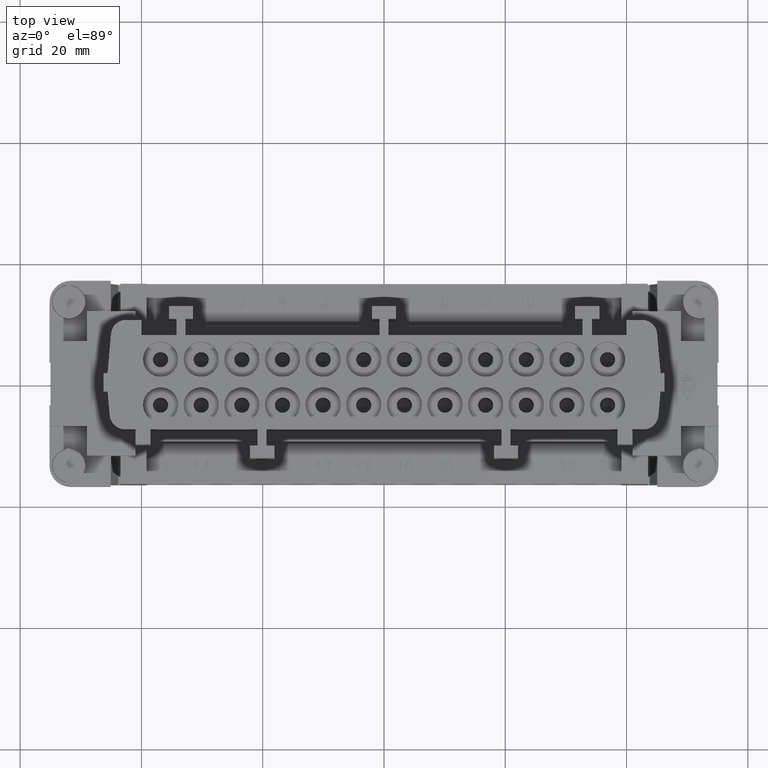
[diagram: clean part render]
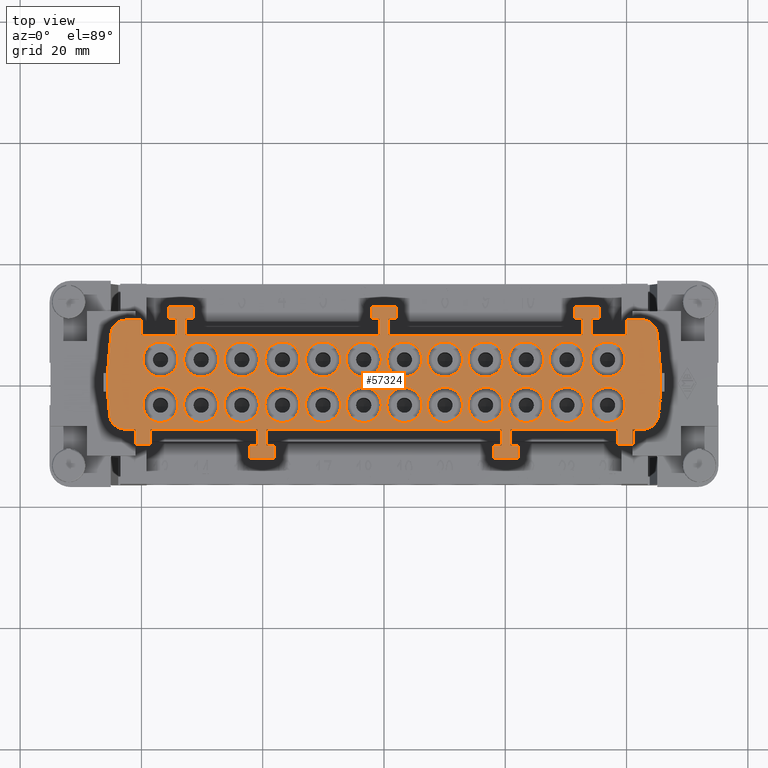
[diagram: same view with one face highlighted and labeled with its STEP entity id]
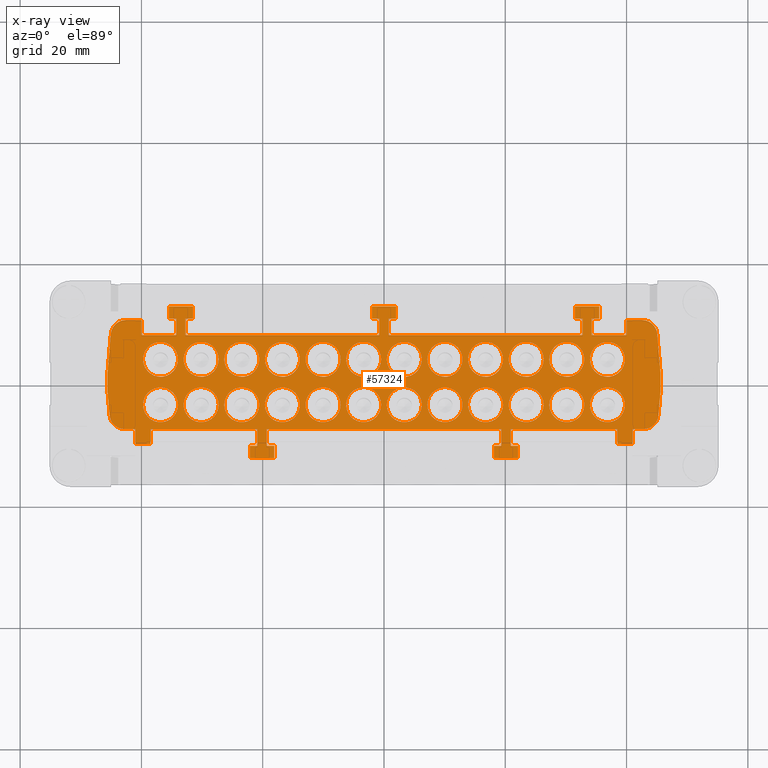
[diagram: x-ray of the same camera — body ghosted, the highlighted face saturated]
A machine part, top view. The second image highlights one B-rep face of the part: STEP entity #57324.
The next image is the same camera in x-ray: the body ghosted, the highlighted face saturated — about 0% of this face is hidden behind the body in this view.
In plain terms, the highlighted planar face has unit normal (0, 0, 1).
Its self-contained STEP definition (entity closure, byte-faithful):
#8753=CARTESIAN_POINT('',(-33.950000000000003,-3.750000000000000,35.0));
#8754=VERTEX_POINT('',#8753);
#8770=CARTESIAN_POINT('',(-39.750000000000000,-3.750000000000000,35.0));
#8771=VERTEX_POINT('',#8770);
#8778=CARTESIAN_POINT('',(-36.850000000000001,-3.750000000000000,35.0));
#8779=DIRECTION('',(0.0,0.0,-1.0));
#8780=DIRECTION('',(1.0,0.0,0.0));
#8781=AXIS2_PLACEMENT_3D('',#8778,#8779,#8780);
#8782=CIRCLE('',#8781,2.900000000000000);
#8783=EDGE_CURVE('',#8754,#8771,#8782,.T.);
#8929=CARTESIAN_POINT('',(-27.250000000000000,-3.750000000000004,35.0));
#8930=VERTEX_POINT('',#8929);
#8946=CARTESIAN_POINT('',(-33.050000000000004,-3.750000000000004,35.0));
#8947=VERTEX_POINT('',#8946);
#8954=CARTESIAN_POINT('',(-30.150000000000002,-3.750000000000004,35.0));
#8955=DIRECTION('',(0.0,0.0,-1.0));
#8956=DIRECTION('',(1.0,0.0,0.0));
#8957=AXIS2_PLACEMENT_3D('',#8954,#8955,#8956);
#8958=CIRCLE('',#8957,2.900000000000000);
#8959=EDGE_CURVE('',#8930,#8947,#8958,.T.);
#9105=CARTESIAN_POINT('',(-20.549999999999997,-3.750000000000008,35.0));
#9106=VERTEX_POINT('',#9105);
#9122=CARTESIAN_POINT('',(-26.349999999999994,-3.750000000000008,35.0));
#9123=VERTEX_POINT('',#9122);
#9130=CARTESIAN_POINT('',(-23.449999999999996,-3.750000000000008,35.0));
#9131=DIRECTION('',(0.0,0.0,-1.0));
#9132=DIRECTION('',(1.0,0.0,0.0));
#9133=AXIS2_PLACEMENT_3D('',#9130,#9131,#9132);
#9134=CIRCLE('',#9133,2.900000000000000);
#9135=EDGE_CURVE('',#9106,#9123,#9134,.T.);
#9281=CARTESIAN_POINT('',(-13.849999999999998,-3.750000000000013,35.0));
#9282=VERTEX_POINT('',#9281);
#9298=CARTESIAN_POINT('',(-19.649999999999999,-3.750000000000012,35.0));
#9299=VERTEX_POINT('',#9298);
#9306=CARTESIAN_POINT('',(-16.750000000000000,-3.750000000000013,35.0));
#9307=DIRECTION('',(0.0,0.0,-1.0));
#9308=DIRECTION('',(1.0,0.0,0.0));
#9309=AXIS2_PLACEMENT_3D('',#9306,#9307,#9308);
#9310=CIRCLE('',#9309,2.900000000000000);
#9311=EDGE_CURVE('',#9282,#9299,#9310,.T.);
#9457=CARTESIAN_POINT('',(-7.149999999999999,-3.750000000000017,35.0));
#9458=VERTEX_POINT('',#9457);
#9474=CARTESIAN_POINT('',(-12.949999999999999,-3.750000000000016,35.0));
#9475=VERTEX_POINT('',#9474);
#9482=CARTESIAN_POINT('',(-10.049999999999999,-3.750000000000017,35.0));
#9483=DIRECTION('',(0.0,0.0,-1.0));
#9484=DIRECTION('',(1.0,0.0,0.0));
#9485=AXIS2_PLACEMENT_3D('',#9482,#9483,#9484);
#9486=CIRCLE('',#9485,2.900000000000000);
#9487=EDGE_CURVE('',#9458,#9475,#9486,.T.);
#9633=CARTESIAN_POINT('',(-0.449999999999999,-3.750000000000021,35.0));
#9634=VERTEX_POINT('',#9633);
#9650=CARTESIAN_POINT('',(-6.250000000000000,-3.750000000000021,35.0));
#9651=VERTEX_POINT('',#9650);
#9658=CARTESIAN_POINT('',(-3.350000000000000,-3.750000000000021,35.0));
#9659=DIRECTION('',(0.0,0.0,-1.0));
#9660=DIRECTION('',(1.0,0.0,0.0));
#9661=AXIS2_PLACEMENT_3D('',#9658,#9659,#9660);
#9662=CIRCLE('',#9661,2.900000000000000);
#9663=EDGE_CURVE('',#9634,#9651,#9662,.T.);
#9809=CARTESIAN_POINT('',(6.250000000000004,-3.750000000000026,35.0));
#9810=VERTEX_POINT('',#9809);
#9826=CARTESIAN_POINT('',(0.450000000000004,-3.750000000000025,35.0));
#9827=VERTEX_POINT('',#9826);
#9834=CARTESIAN_POINT('',(3.350000000000004,-3.750000000000026,35.0));
#9835=DIRECTION('',(0.0,0.0,-1.0));
#9836=DIRECTION('',(1.0,0.0,0.0));
#9837=AXIS2_PLACEMENT_3D('',#9834,#9835,#9836);
#9838=CIRCLE('',#9837,2.900000000000000);
#9839=EDGE_CURVE('',#9810,#9827,#9838,.T.);
#9985=CARTESIAN_POINT('',(12.950000000000003,-3.750000000000029,35.0));
#9986=VERTEX_POINT('',#9985);
#10002=CARTESIAN_POINT('',(7.150000000000004,-3.750000000000029,35.0));
#10003=VERTEX_POINT('',#10002);
#10010=CARTESIAN_POINT('',(10.050000000000004,-3.750000000000029,35.0));
#10011=DIRECTION('',(0.0,0.0,-1.0));
#10012=DIRECTION('',(1.0,0.0,0.0));
#10013=AXIS2_PLACEMENT_3D('',#10010,#10011,#10012);
#10014=CIRCLE('',#10013,2.900000000000000);
#10015=EDGE_CURVE('',#9986,#10003,#10014,.T.);
#10161=CARTESIAN_POINT('',(19.650000000000002,-3.750000000000034,35.0));
#10162=VERTEX_POINT('',#10161);
#10178=CARTESIAN_POINT('',(13.850000000000003,-3.750000000000033,35.0));
#10179=VERTEX_POINT('',#10178);
#10186=CARTESIAN_POINT('',(16.750000000000004,-3.750000000000034,35.0));
#10187=DIRECTION('',(0.0,0.0,-1.0));
#10188=DIRECTION('',(1.0,0.0,0.0));
#10189=AXIS2_PLACEMENT_3D('',#10186,#10187,#10188);
#10190=CIRCLE('',#10189,2.900000000000000);
#10191=EDGE_CURVE('',#10162,#10179,#10190,.T.);
#10337=CARTESIAN_POINT('',(26.350000000000001,-3.750000000000038,35.0));
#10338=VERTEX_POINT('',#10337);
#10354=CARTESIAN_POINT('',(20.550000000000004,-3.750000000000037,35.0));
#10355=VERTEX_POINT('',#10354);
#10362=CARTESIAN_POINT('',(23.450000000000003,-3.750000000000038,35.0));
#10363=DIRECTION('',(0.0,0.0,-1.0));
#10364=DIRECTION('',(1.0,0.0,0.0));
#10365=AXIS2_PLACEMENT_3D('',#10362,#10363,#10364);
#10366=CIRCLE('',#10365,2.900000000000000);
#10367=EDGE_CURVE('',#10338,#10355,#10366,.T.);
#10513=CARTESIAN_POINT('',(33.050000000000004,-3.750000000000042,35.0));
#10514=VERTEX_POINT('',#10513);
#10530=CARTESIAN_POINT('',(27.250000000000004,-3.750000000000042,35.0));
#10531=VERTEX_POINT('',#10530);
#10538=CARTESIAN_POINT('',(30.150000000000002,-3.750000000000042,35.0));
#10539=DIRECTION('',(0.0,0.0,-1.0));
#10540=DIRECTION('',(1.0,0.0,0.0));
#10541=AXIS2_PLACEMENT_3D('',#10538,#10539,#10540);
#10542=CIRCLE('',#10541,2.900000000000000);
#10543=EDGE_CURVE('',#10514,#10531,#10542,.T.);
#10689=CARTESIAN_POINT('',(39.750000000000000,-3.750000000000047,35.0));
#10690=VERTEX_POINT('',#10689);
#10706=CARTESIAN_POINT('',(33.950000000000003,-3.750000000000046,35.0));
#10707=VERTEX_POINT('',#10706);
#10714=CARTESIAN_POINT('',(36.850000000000001,-3.750000000000047,35.0));
#10715=DIRECTION('',(0.0,0.0,-1.0));
#10716=DIRECTION('',(1.0,0.0,0.0));
#10717=AXIS2_PLACEMENT_3D('',#10714,#10715,#10716);
#10718=CIRCLE('',#10717,2.900000000000000);
#10719=EDGE_CURVE('',#10690,#10707,#10718,.T.);
#10865=CARTESIAN_POINT('',(-33.950000000000003,3.750000000000000,35.0));
#10866=VERTEX_POINT('',#10865);
#10882=CARTESIAN_POINT('',(-39.750000000000000,3.750000000000000,35.0));
#10883=VERTEX_POINT('',#10882);
#10890=CARTESIAN_POINT('',(-36.850000000000001,3.750000000000000,35.0));
#10891=DIRECTION('',(0.0,0.0,-1.0));
#10892=DIRECTION('',(1.0,0.0,0.0));
#10893=AXIS2_PLACEMENT_3D('',#10890,#10891,#10892);
#10894=CIRCLE('',#10893,2.900000000000000);
#10895=EDGE_CURVE('',#10866,#10883,#10894,.T.);
#11041=CARTESIAN_POINT('',(-27.250000000000000,3.749999999999996,35.0));
#11042=VERTEX_POINT('',#11041);
#11058=CARTESIAN_POINT('',(-33.050000000000004,3.749999999999996,35.0));
#11059=VERTEX_POINT('',#11058);
#11066=CARTESIAN_POINT('',(-30.150000000000002,3.749999999999996,35.0));
#11067=DIRECTION('',(0.0,0.0,-1.0));
#11068=DIRECTION('',(1.0,0.0,0.0));
#11069=AXIS2_PLACEMENT_3D('',#11066,#11067,#11068);
#11070=CIRCLE('',#11069,2.900000000000000);
#11071=EDGE_CURVE('',#11042,#11059,#11070,.T.);
#11217=CARTESIAN_POINT('',(-20.549999999999997,3.749999999999991,35.0));
#11218=VERTEX_POINT('',#11217);
#11234=CARTESIAN_POINT('',(-26.349999999999994,3.749999999999992,35.0));
#11235=VERTEX_POINT('',#11234);
#11242=CARTESIAN_POINT('',(-23.449999999999996,3.749999999999991,35.0));
#11243=DIRECTION('',(0.0,0.0,-1.0));
#11244=DIRECTION('',(1.0,0.0,0.0));
#11245=AXIS2_PLACEMENT_3D('',#11242,#11243,#11244);
#11246=CIRCLE('',#11245,2.900000000000000);
#11247=EDGE_CURVE('',#11218,#11235,#11246,.T.);
#11393=CARTESIAN_POINT('',(-13.849999999999998,3.749999999999988,35.0));
#11394=VERTEX_POINT('',#11393);
#11410=CARTESIAN_POINT('',(-19.649999999999999,3.749999999999988,35.0));
#11411=VERTEX_POINT('',#11410);
#11418=CARTESIAN_POINT('',(-16.750000000000000,3.749999999999988,35.0));
#11419=DIRECTION('',(0.0,0.0,-1.0));
#11420=DIRECTION('',(1.0,0.0,0.0));
#11421=AXIS2_PLACEMENT_3D('',#11418,#11419,#11420);
#11422=CIRCLE('',#11421,2.900000000000000);
#11423=EDGE_CURVE('',#11394,#11411,#11422,.T.);
#11569=CARTESIAN_POINT('',(-7.149999999999999,3.749999999999983,35.0));
#11570=VERTEX_POINT('',#11569);
#11586=CARTESIAN_POINT('',(-12.949999999999999,3.749999999999984,35.0));
#11587=VERTEX_POINT('',#11586);
#11594=CARTESIAN_POINT('',(-10.049999999999999,3.749999999999983,35.0));
#11595=DIRECTION('',(0.0,0.0,-1.0));
#11596=DIRECTION('',(1.0,0.0,0.0));
#11597=AXIS2_PLACEMENT_3D('',#11594,#11595,#11596);
#11598=CIRCLE('',#11597,2.900000000000000);
#11599=EDGE_CURVE('',#11570,#11587,#11598,.T.);
#11745=CARTESIAN_POINT('',(-0.449999999999999,3.749999999999979,35.0));
#11746=VERTEX_POINT('',#11745);
#11762=CARTESIAN_POINT('',(-6.250000000000000,3.749999999999979,35.0));
#11763=VERTEX_POINT('',#11762);
#11770=CARTESIAN_POINT('',(-3.350000000000000,3.749999999999979,35.0));
#11771=DIRECTION('',(0.0,0.0,-1.0));
#11772=DIRECTION('',(1.0,0.0,0.0));
#11773=AXIS2_PLACEMENT_3D('',#11770,#11771,#11772);
#11774=CIRCLE('',#11773,2.900000000000000);
#11775=EDGE_CURVE('',#11746,#11763,#11774,.T.);
#11921=CARTESIAN_POINT('',(6.250000000000004,3.749999999999974,35.0));
#11922=VERTEX_POINT('',#11921);
#11938=CARTESIAN_POINT('',(0.450000000000004,3.749999999999975,35.0));
#11939=VERTEX_POINT('',#11938);
#11946=CARTESIAN_POINT('',(3.350000000000004,3.749999999999974,35.0));
#11947=DIRECTION('',(0.0,0.0,-1.0));
#11948=DIRECTION('',(1.0,0.0,0.0));
#11949=AXIS2_PLACEMENT_3D('',#11946,#11947,#11948);
#11950=CIRCLE('',#11949,2.900000000000000);
#11951=EDGE_CURVE('',#11922,#11939,#11950,.T.);
#12097=CARTESIAN_POINT('',(12.950000000000003,3.749999999999970,35.0));
#12098=VERTEX_POINT('',#12097);
#12114=CARTESIAN_POINT('',(7.150000000000004,3.749999999999970,35.0));
#12115=VERTEX_POINT('',#12114);
#12122=CARTESIAN_POINT('',(10.050000000000004,3.749999999999970,35.0));
#12123=DIRECTION('',(0.0,0.0,-1.0));
#12124=DIRECTION('',(1.0,0.0,0.0));
#12125=AXIS2_PLACEMENT_3D('',#12122,#12123,#12124);
#12126=CIRCLE('',#12125,2.900000000000000);
#12127=EDGE_CURVE('',#12098,#12115,#12126,.T.);
#12273=CARTESIAN_POINT('',(19.650000000000002,3.749999999999967,35.0));
#12274=VERTEX_POINT('',#12273);
#12290=CARTESIAN_POINT('',(13.850000000000003,3.749999999999967,35.0));
#12291=VERTEX_POINT('',#12290);
#12298=CARTESIAN_POINT('',(16.750000000000004,3.749999999999967,35.0));
#12299=DIRECTION('',(0.0,0.0,-1.0));
#12300=DIRECTION('',(1.0,0.0,0.0));
#12301=AXIS2_PLACEMENT_3D('',#12298,#12299,#12300);
#12302=CIRCLE('',#12301,2.900000000000000);
#12303=EDGE_CURVE('',#12274,#12291,#12302,.T.);
#12449=CARTESIAN_POINT('',(26.350000000000001,3.749999999999962,35.0));
#12450=VERTEX_POINT('',#12449);
#12466=CARTESIAN_POINT('',(20.550000000000004,3.749999999999963,35.0));
#12467=VERTEX_POINT('',#12466);
#12474=CARTESIAN_POINT('',(23.450000000000003,3.749999999999962,35.0));
#12475=DIRECTION('',(0.0,0.0,-1.0));
#12476=DIRECTION('',(1.0,0.0,0.0));
#12477=AXIS2_PLACEMENT_3D('',#12474,#12475,#12476);
#12478=CIRCLE('',#12477,2.900000000000000);
#12479=EDGE_CURVE('',#12450,#12467,#12478,.T.);
#12625=CARTESIAN_POINT('',(33.050000000000004,3.749999999999958,35.0));
#12626=VERTEX_POINT('',#12625);
#12642=CARTESIAN_POINT('',(27.250000000000004,3.749999999999958,35.0));
#12643=VERTEX_POINT('',#12642);
#12650=CARTESIAN_POINT('',(30.150000000000002,3.749999999999958,35.0));
#12651=DIRECTION('',(0.0,0.0,-1.0));
#12652=DIRECTION('',(1.0,0.0,0.0));
#12653=AXIS2_PLACEMENT_3D('',#12650,#12651,#12652);
#12654=CIRCLE('',#12653,2.900000000000000);
#12655=EDGE_CURVE('',#12626,#12643,#12654,.T.);
#12801=CARTESIAN_POINT('',(39.750000000000000,3.749999999999953,35.0));
#12802=VERTEX_POINT('',#12801);
#12818=CARTESIAN_POINT('',(33.950000000000003,3.749999999999954,35.0));
#12819=VERTEX_POINT('',#12818);
#12826=CARTESIAN_POINT('',(36.850000000000001,3.749999999999953,35.0));
#12827=DIRECTION('',(0.0,0.0,-1.0));
#12828=DIRECTION('',(1.0,0.0,0.0));
#12829=AXIS2_PLACEMENT_3D('',#12826,#12827,#12828);
#12830=CIRCLE('',#12829,2.900000000000000);
#12831=EDGE_CURVE('',#12802,#12819,#12830,.T.);
#49723=CARTESIAN_POINT('',(-42.543646259104605,10.250000000000002,35.0));
#49724=VERTEX_POINT('',#49723);
#49731=CARTESIAN_POINT('',(-40.0,10.250000000000002,35.0));
#49732=VERTEX_POINT('',#49731);
#49733=CARTESIAN_POINT('',(-42.543646259104605,10.250000000000002,35.0));
#49734=DIRECTION('',(1.0,0.0,0.0));
#49735=VECTOR('',#49734,2.543646259104605);
#49736=LINE('',#49733,#49735);
#49737=EDGE_CURVE('',#49724,#49732,#49736,.T.);
#50215=CARTESIAN_POINT('',(41.0,-7.750000000000000,35.0));
#50216=VERTEX_POINT('',#50215);
#50223=CARTESIAN_POINT('',(41.0,-10.250000000000002,35.0));
#50224=VERTEX_POINT('',#50223);
#50225=CARTESIAN_POINT('',(41.0,-7.750000000000000,35.0));
#50226=DIRECTION('',(0.0,-1.0,0.0));
#50227=VECTOR('',#50226,2.500000000000002);
#50228=LINE('',#50225,#50227);
#50229=EDGE_CURVE('',#50216,#50224,#50228,.T.);
#50448=CARTESIAN_POINT('',(42.762367917919413,-7.749999999999999,35.0));
#50449=VERTEX_POINT('',#50448);
#50456=CARTESIAN_POINT('',(42.762367917919413,-7.749999999999999,35.0));
#50457=DIRECTION('',(-1.0,0.0,0.0));
#50458=VECTOR('',#50457,1.762367917919413);
#50459=LINE('',#50456,#50458);
#50460=EDGE_CURVE('',#50449,#50216,#50459,.T.);
#50527=CARTESIAN_POINT('',(45.252854663148781,-5.467889356869145,35.0));
#50528=VERTEX_POINT('',#50527);
#50535=CARTESIAN_POINT('',(42.762367917919413,-5.249999999999999,35.0));
#50536=DIRECTION('',(0.0,0.0,-1.0));
#50537=DIRECTION('',(0.0,1.0,0.0));
#50538=AXIS2_PLACEMENT_3D('',#50535,#50536,#50537);
#50539=CIRCLE('',#50538,2.500000000000009);
#50540=EDGE_CURVE('',#50528,#50449,#50539,.T.);
#50631=CARTESIAN_POINT('',(36.850000000000001,3.749999999999953,35.0));
#50632=DIRECTION('',(0.0,0.0,-1.0));
#50633=DIRECTION('',(1.0,0.0,0.0));
#50634=AXIS2_PLACEMENT_3D('',#50631,#50632,#50633);
#50635=CIRCLE('',#50634,2.900000000000000);
#50636=EDGE_CURVE('',#12819,#12802,#50635,.T.);
#50761=CARTESIAN_POINT('',(30.150000000000002,3.749999999999958,35.0));
#50762=DIRECTION('',(0.0,0.0,-1.0));
#50763=DIRECTION('',(1.0,0.0,0.0));
#50764=AXIS2_PLACEMENT_3D('',#50761,#50762,#50763);
#50765=CIRCLE('',#50764,2.900000000000000);
#50766=EDGE_CURVE('',#12643,#12626,#50765,.T.);
#50891=CARTESIAN_POINT('',(23.450000000000003,3.749999999999962,35.0));
#50892=DIRECTION('',(0.0,0.0,-1.0));
#50893=DIRECTION('',(1.0,0.0,0.0));
#50894=AXIS2_PLACEMENT_3D('',#50891,#50892,#50893);
#50895=CIRCLE('',#50894,2.900000000000000);
#50896=EDGE_CURVE('',#12467,#12450,#50895,.T.);
#51021=CARTESIAN_POINT('',(16.750000000000004,3.749999999999967,35.0));
#51022=DIRECTION('',(0.0,0.0,-1.0));
#51023=DIRECTION('',(1.0,0.0,0.0));
#51024=AXIS2_PLACEMENT_3D('',#51021,#51022,#51023);
#51025=CIRCLE('',#51024,2.900000000000000);
#51026=EDGE_CURVE('',#12291,#12274,#51025,.T.);
#51151=CARTESIAN_POINT('',(10.050000000000004,3.749999999999970,35.0));
#51152=DIRECTION('',(0.0,0.0,-1.0));
#51153=DIRECTION('',(1.0,0.0,0.0));
#51154=AXIS2_PLACEMENT_3D('',#51151,#51152,#51153);
#51155=CIRCLE('',#51154,2.900000000000000);
#51156=EDGE_CURVE('',#12115,#12098,#51155,.T.);
#51281=CARTESIAN_POINT('',(3.350000000000004,3.749999999999974,35.0));
#51282=DIRECTION('',(0.0,0.0,-1.0));
#51283=DIRECTION('',(1.0,0.0,0.0));
#51284=AXIS2_PLACEMENT_3D('',#51281,#51282,#51283);
#51285=CIRCLE('',#51284,2.900000000000000);
#51286=EDGE_CURVE('',#11939,#11922,#51285,.T.);
#51411=CARTESIAN_POINT('',(-3.350000000000000,3.749999999999979,35.0));
#51412=DIRECTION('',(0.0,0.0,-1.0));
#51413=DIRECTION('',(1.0,0.0,0.0));
#51414=AXIS2_PLACEMENT_3D('',#51411,#51412,#51413);
#51415=CIRCLE('',#51414,2.900000000000000);
#51416=EDGE_CURVE('',#11763,#11746,#51415,.T.);
#51541=CARTESIAN_POINT('',(-10.049999999999999,3.749999999999983,35.0));
#51542=DIRECTION('',(0.0,0.0,-1.0));
#51543=DIRECTION('',(1.0,0.0,0.0));
#51544=AXIS2_PLACEMENT_3D('',#51541,#51542,#51543);
#51545=CIRCLE('',#51544,2.900000000000000);
#51546=EDGE_CURVE('',#11587,#11570,#51545,.T.);
#51671=CARTESIAN_POINT('',(-16.750000000000000,3.749999999999988,35.0));
#51672=DIRECTION('',(0.0,0.0,-1.0));
#51673=DIRECTION('',(1.0,0.0,0.0));
#51674=AXIS2_PLACEMENT_3D('',#51671,#51672,#51673);
#51675=CIRCLE('',#51674,2.900000000000000);
#51676=EDGE_CURVE('',#11411,#11394,#51675,.T.);
#51801=CARTESIAN_POINT('',(-23.449999999999996,3.749999999999991,35.0));
#51802=DIRECTION('',(0.0,0.0,-1.0));
#51803=DIRECTION('',(1.0,0.0,0.0));
#51804=AXIS2_PLACEMENT_3D('',#51801,#51802,#51803);
#51805=CIRCLE('',#51804,2.900000000000000);
#51806=EDGE_CURVE('',#11235,#11218,#51805,.T.);
#51931=CARTESIAN_POINT('',(-30.150000000000002,3.749999999999996,35.0));
#51932=DIRECTION('',(0.0,0.0,-1.0));
#51933=DIRECTION('',(1.0,0.0,0.0));
#51934=AXIS2_PLACEMENT_3D('',#51931,#51932,#51933);
#51935=CIRCLE('',#51934,2.900000000000000);
#51936=EDGE_CURVE('',#11059,#11042,#51935,.T.);
#52061=CARTESIAN_POINT('',(-36.850000000000001,3.750000000000000,35.0));
#52062=DIRECTION('',(0.0,0.0,-1.0));
#52063=DIRECTION('',(1.0,0.0,0.0));
#52064=AXIS2_PLACEMENT_3D('',#52061,#52062,#52063);
#52065=CIRCLE('',#52064,2.900000000000000);
#52066=EDGE_CURVE('',#10883,#10866,#52065,.T.);
#52191=CARTESIAN_POINT('',(36.850000000000001,-3.750000000000047,35.0));
#52192=DIRECTION('',(0.0,0.0,-1.0));
#52193=DIRECTION('',(1.0,0.0,0.0));
#52194=AXIS2_PLACEMENT_3D('',#52191,#52192,#52193);
#52195=CIRCLE('',#52194,2.900000000000000);
#52196=EDGE_CURVE('',#10707,#10690,#52195,.T.);
#52321=CARTESIAN_POINT('',(30.150000000000002,-3.750000000000042,35.0));
#52322=DIRECTION('',(0.0,0.0,-1.0));
#52323=DIRECTION('',(1.0,0.0,0.0));
#52324=AXIS2_PLACEMENT_3D('',#52321,#52322,#52323);
#52325=CIRCLE('',#52324,2.900000000000000);
#52326=EDGE_CURVE('',#10531,#10514,#52325,.T.);
#52451=CARTESIAN_POINT('',(23.450000000000003,-3.750000000000038,35.0));
#52452=DIRECTION('',(0.0,0.0,-1.0));
#52453=DIRECTION('',(1.0,0.0,0.0));
#52454=AXIS2_PLACEMENT_3D('',#52451,#52452,#52453);
#52455=CIRCLE('',#52454,2.900000000000000);
#52456=EDGE_CURVE('',#10355,#10338,#52455,.T.);
#52581=CARTESIAN_POINT('',(16.750000000000004,-3.750000000000034,35.0));
#52582=DIRECTION('',(0.0,0.0,-1.0));
#52583=DIRECTION('',(1.0,0.0,0.0));
#52584=AXIS2_PLACEMENT_3D('',#52581,#52582,#52583);
#52585=CIRCLE('',#52584,2.900000000000000);
#52586=EDGE_CURVE('',#10179,#10162,#52585,.T.);
#52711=CARTESIAN_POINT('',(10.050000000000004,-3.750000000000029,35.0));
#52712=DIRECTION('',(0.0,0.0,-1.0));
#52713=DIRECTION('',(1.0,0.0,0.0));
#52714=AXIS2_PLACEMENT_3D('',#52711,#52712,#52713);
#52715=CIRCLE('',#52714,2.900000000000000);
#52716=EDGE_CURVE('',#10003,#9986,#52715,.T.);
#52841=CARTESIAN_POINT('',(3.350000000000004,-3.750000000000026,35.0));
#52842=DIRECTION('',(0.0,0.0,-1.0));
#52843=DIRECTION('',(1.0,0.0,0.0));
#52844=AXIS2_PLACEMENT_3D('',#52841,#52842,#52843);
#52845=CIRCLE('',#52844,2.900000000000000);
#52846=EDGE_CURVE('',#9827,#9810,#52845,.T.);
#52971=CARTESIAN_POINT('',(-3.350000000000000,-3.750000000000021,35.0));
#52972=DIRECTION('',(0.0,0.0,-1.0));
#52973=DIRECTION('',(1.0,0.0,0.0));
#52974=AXIS2_PLACEMENT_3D('',#52971,#52972,#52973);
#52975=CIRCLE('',#52974,2.900000000000000);
#52976=EDGE_CURVE('',#9651,#9634,#52975,.T.);
#53101=CARTESIAN_POINT('',(-10.049999999999999,-3.750000000000017,35.0));
#53102=DIRECTION('',(0.0,0.0,-1.0));
#53103=DIRECTION('',(1.0,0.0,0.0));
#53104=AXIS2_PLACEMENT_3D('',#53101,#53102,#53103);
#53105=CIRCLE('',#53104,2.900000000000000);
#53106=EDGE_CURVE('',#9475,#9458,#53105,.T.);
#53231=CARTESIAN_POINT('',(-16.750000000000000,-3.750000000000013,35.0));
#53232=DIRECTION('',(0.0,0.0,-1.0));
#53233=DIRECTION('',(1.0,0.0,0.0));
#53234=AXIS2_PLACEMENT_3D('',#53231,#53232,#53233);
#53235=CIRCLE('',#53234,2.900000000000000);
#53236=EDGE_CURVE('',#9299,#9282,#53235,.T.);
#53361=CARTESIAN_POINT('',(-23.449999999999996,-3.750000000000008,35.0));
#53362=DIRECTION('',(0.0,0.0,-1.0));
#53363=DIRECTION('',(1.0,0.0,0.0));
#53364=AXIS2_PLACEMENT_3D('',#53361,#53362,#53363);
#53365=CIRCLE('',#53364,2.900000000000000);
#53366=EDGE_CURVE('',#9123,#9106,#53365,.T.);
#53491=CARTESIAN_POINT('',(-30.150000000000002,-3.750000000000004,35.0));
#53492=DIRECTION('',(0.0,0.0,-1.0));
#53493=DIRECTION('',(1.0,0.0,0.0));
#53494=AXIS2_PLACEMENT_3D('',#53491,#53492,#53493);
#53495=CIRCLE('',#53494,2.900000000000000);
#53496=EDGE_CURVE('',#8947,#8930,#53495,.T.);
#53621=CARTESIAN_POINT('',(-36.850000000000001,-3.750000000000000,35.0));
#53622=DIRECTION('',(0.0,0.0,-1.0));
#53623=DIRECTION('',(1.0,0.0,0.0));
#53624=AXIS2_PLACEMENT_3D('',#53621,#53622,#53623);
#53625=CIRCLE('',#53624,2.900000000000000);
#53626=EDGE_CURVE('',#8771,#8754,#53625,.T.);
#53687=CARTESIAN_POINT('',(32.750000000000000,7.750000000000000,35.0));
#53688=VERTEX_POINT('',#53687);
#53695=CARTESIAN_POINT('',(32.749999999999993,10.500000000000000,35.0));
#53696=VERTEX_POINT('',#53695);
#53697=CARTESIAN_POINT('',(32.750000000000000,7.750000000000000,35.0));
#53698=DIRECTION('',(0.0,1.0,0.0));
#53699=VECTOR('',#53698,2.750000000000000);
#53700=LINE('',#53697,#53699);
#53701=EDGE_CURVE('',#53688,#53696,#53700,.T.);
#53718=CARTESIAN_POINT('',(31.499999999999993,10.500000000000000,35.0));
#53719=VERTEX_POINT('',#53718);
#53720=CARTESIAN_POINT('',(32.749999999999993,10.500000000000000,35.0));
#53721=DIRECTION('',(-1.0,0.0,0.0));
#53722=VECTOR('',#53721,1.250000000000000);
#53723=LINE('',#53720,#53722);
#53724=EDGE_CURVE('',#53696,#53719,#53723,.T.);
#53742=CARTESIAN_POINT('',(31.499999999999993,12.500000000000000,35.0));
#53743=VERTEX_POINT('',#53742);
#53744=CARTESIAN_POINT('',(31.499999999999993,10.500000000000000,35.0));
#53745=DIRECTION('',(0.0,1.0,0.0));
#53746=VECTOR('',#53745,2.0);
#53747=LINE('',#53744,#53746);
#53748=EDGE_CURVE('',#53719,#53743,#53747,.T.);
#53766=CARTESIAN_POINT('',(35.500000000000000,12.500000000000000,35.0));
#53767=VERTEX_POINT('',#53766);
#53768=CARTESIAN_POINT('',(31.499999999999993,12.500000000000000,35.0));
#53769=DIRECTION('',(1.0,0.0,0.0));
#53770=VECTOR('',#53769,4.000000000000007);
#53771=LINE('',#53768,#53770);
#53772=EDGE_CURVE('',#53743,#53767,#53771,.T.);
#53790=CARTESIAN_POINT('',(35.500000000000000,10.500000000000000,35.0));
#53791=VERTEX_POINT('',#53790);
#53792=CARTESIAN_POINT('',(35.500000000000000,12.500000000000000,35.0));
#53793=DIRECTION('',(0.0,-1.0,0.0));
#53794=VECTOR('',#53793,2.0);
#53795=LINE('',#53792,#53794);
#53796=EDGE_CURVE('',#53767,#53791,#53795,.T.);
#53814=CARTESIAN_POINT('',(34.249999999999993,10.500000000000000,35.0));
#53815=VERTEX_POINT('',#53814);
#53816=CARTESIAN_POINT('',(35.500000000000000,10.500000000000000,35.0));
#53817=DIRECTION('',(-1.0,0.0,0.0));
#53818=VECTOR('',#53817,1.250000000000007);
#53819=LINE('',#53816,#53818);
#53820=EDGE_CURVE('',#53791,#53815,#53819,.T.);
#53848=CARTESIAN_POINT('',(34.249999999999993,7.750000000000000,35.0));
#53849=VERTEX_POINT('',#53848);
#53850=CARTESIAN_POINT('',(34.249999999999993,10.500000000000000,35.0));
#53851=DIRECTION('',(0.0,-1.0,0.0));
#53852=VECTOR('',#53851,2.750000000000000);
#53853=LINE('',#53850,#53852);
#53854=EDGE_CURVE('',#53815,#53849,#53853,.T.);
#53895=CARTESIAN_POINT('',(19.350000000000001,-10.500000000000000,34.999999999999993));
#53896=VERTEX_POINT('',#53895);
#53903=CARTESIAN_POINT('',(19.350000000000019,-7.750000000000000,34.999999999999993));
#53904=VERTEX_POINT('',#53903);
#53905=CARTESIAN_POINT('',(19.350000000000001,-10.500000000000000,34.999999999999993));
#53906=DIRECTION('',(0.0,1.0,0.0));
#53907=VECTOR('',#53906,2.750000000000000);
#53908=LINE('',#53905,#53907);
#53909=EDGE_CURVE('',#53896,#53904,#53908,.T.);
#53935=CARTESIAN_POINT('',(20.849999999999994,-7.750000000000000,34.999999999999993));
#53936=VERTEX_POINT('',#53935);
#53943=CARTESIAN_POINT('',(20.850000000000005,-10.500000000000000,34.999999999999993));
#53944=VERTEX_POINT('',#53943);
#53945=CARTESIAN_POINT('',(20.849999999999994,-7.750000000000000,34.999999999999993));
#53946=DIRECTION('',(0.0,-1.0,0.0));
#53947=VECTOR('',#53946,2.750000000000000);
#53948=LINE('',#53945,#53947);
#53949=EDGE_CURVE('',#53936,#53944,#53948,.T.);
#53972=CARTESIAN_POINT('',(22.100000000000005,-10.500000000000000,34.999999999999993));
#53973=VERTEX_POINT('',#53972);
#53974=CARTESIAN_POINT('',(20.850000000000005,-10.500000000000000,34.999999999999993));
#53975=DIRECTION('',(1.0,0.0,0.0));
#53976=VECTOR('',#53975,1.250000000000000);
#53977=LINE('',#53974,#53976);
#53978=EDGE_CURVE('',#53944,#53973,#53977,.T.);
#53996=CARTESIAN_POINT('',(22.100000000000001,-12.500000000000000,34.999999999999993));
#53997=VERTEX_POINT('',#53996);
#53998=CARTESIAN_POINT('',(22.100000000000005,-10.500000000000000,34.999999999999993));
#53999=DIRECTION('',(0.0,-1.0,0.0));
#54000=VECTOR('',#53999,2.0);
#54001=LINE('',#53998,#54000);
#54002=EDGE_CURVE('',#53973,#53997,#54001,.T.);
#54020=CARTESIAN_POINT('',(18.100000000000001,-12.500000000000000,34.999999999999993));
#54021=VERTEX_POINT('',#54020);
#54022=CARTESIAN_POINT('',(22.100000000000001,-12.500000000000000,34.999999999999993));
#54023=DIRECTION('',(-1.0,0.0,0.0));
#54024=VECTOR('',#54023,4.0);
#54025=LINE('',#54022,#54024);
#54026=EDGE_CURVE('',#53997,#54021,#54025,.T.);
#54044=CARTESIAN_POINT('',(18.100000000000001,-10.500000000000000,34.999999999999993));
#54045=VERTEX_POINT('',#54044);
#54046=CARTESIAN_POINT('',(18.100000000000001,-12.500000000000000,34.999999999999993));
#54047=DIRECTION('',(0.0,1.0,0.0));
#54048=VECTOR('',#54047,2.0);
#54049=LINE('',#54046,#54048);
#54050=EDGE_CURVE('',#54021,#54045,#54049,.T.);
#54068=CARTESIAN_POINT('',(18.100000000000001,-10.500000000000000,34.999999999999993));
#54069=DIRECTION('',(1.0,0.0,0.0));
#54070=VECTOR('',#54069,1.250000000000000);
#54071=LINE('',#54068,#54070);
#54072=EDGE_CURVE('',#54045,#53896,#54071,.T.);
#54102=CARTESIAN_POINT('',(-20.850000000000005,-10.500000000000000,34.999999999999993));
#54103=VERTEX_POINT('',#54102);
#54110=CARTESIAN_POINT('',(-20.849999999999994,-7.750000000000000,34.999999999999993));
#54111=VERTEX_POINT('',#54110);
#54112=CARTESIAN_POINT('',(-20.850000000000005,-10.500000000000000,34.999999999999993));
#54113=DIRECTION('',(0.0,1.0,0.0));
#54114=VECTOR('',#54113,2.750000000000000);
#54115=LINE('',#54112,#54114);
#54116=EDGE_CURVE('',#54103,#54111,#54115,.T.);
#54142=CARTESIAN_POINT('',(-19.350000000000019,-7.750000000000000,34.999999999999993));
#54143=VERTEX_POINT('',#54142);
#54150=CARTESIAN_POINT('',(-19.350000000000001,-10.500000000000000,34.999999999999993));
#54151=VERTEX_POINT('',#54150);
#54152=CARTESIAN_POINT('',(-19.350000000000019,-7.750000000000000,34.999999999999993));
#54153=DIRECTION('',(0.0,-1.0,0.0));
#54154=VECTOR('',#54153,2.750000000000000);
#54155=LINE('',#54152,#54154);
#54156=EDGE_CURVE('',#54143,#54151,#54155,.T.);
#54179=CARTESIAN_POINT('',(-18.100000000000001,-10.500000000000000,34.999999999999993));
#54180=VERTEX_POINT('',#54179);
#54181=CARTESIAN_POINT('',(-19.350000000000001,-10.500000000000000,34.999999999999993));
#54182=DIRECTION('',(1.0,0.0,0.0));
#54183=VECTOR('',#54182,1.250000000000000);
#54184=LINE('',#54181,#54183);
#54185=EDGE_CURVE('',#54151,#54180,#54184,.T.);
#54203=CARTESIAN_POINT('',(-18.100000000000001,-12.500000000000000,34.999999999999993));
#54204=VERTEX_POINT('',#54203);
#54205=CARTESIAN_POINT('',(-18.100000000000001,-10.500000000000000,34.999999999999993));
#54206=DIRECTION('',(0.0,-1.0,0.0));
#54207=VECTOR('',#54206,2.0);
#54208=LINE('',#54205,#54207);
#54209=EDGE_CURVE('',#54180,#54204,#54208,.T.);
#54227=CARTESIAN_POINT('',(-22.100000000000001,-12.500000000000000,34.999999999999993));
#54228=VERTEX_POINT('',#54227);
#54229=CARTESIAN_POINT('',(-18.100000000000001,-12.500000000000000,34.999999999999993));
#54230=DIRECTION('',(-1.0,0.0,0.0));
#54231=VECTOR('',#54230,4.0);
#54232=LINE('',#54229,#54231);
#54233=EDGE_CURVE('',#54204,#54228,#54232,.T.);
#54251=CARTESIAN_POINT('',(-22.100000000000005,-10.500000000000000,34.999999999999993));
#54252=VERTEX_POINT('',#54251);
#54253=CARTESIAN_POINT('',(-22.100000000000001,-12.500000000000000,34.999999999999993));
#54254=DIRECTION('',(0.0,1.0,0.0));
#54255=VECTOR('',#54254,2.0);
#54256=LINE('',#54253,#54255);
#54257=EDGE_CURVE('',#54228,#54252,#54256,.T.);
#54275=CARTESIAN_POINT('',(-22.100000000000005,-10.500000000000000,34.999999999999993));
#54276=DIRECTION('',(1.0,0.0,0.0));
#54277=VECTOR('',#54276,1.250000000000000);
#54278=LINE('',#54275,#54277);
#54279=EDGE_CURVE('',#54252,#54103,#54278,.T.);
#54308=CARTESIAN_POINT('',(-0.749999999999993,7.749999999999995,35.0));
#54309=VERTEX_POINT('',#54308);
#54316=CARTESIAN_POINT('',(-0.750000000000000,10.500000000000000,35.0));
#54317=VERTEX_POINT('',#54316);
#54318=CARTESIAN_POINT('',(-0.749999999999993,7.749999999999995,35.0));
#54319=DIRECTION('',(0.0,1.0,0.0));
#54320=VECTOR('',#54319,2.750000000000005);
#54321=LINE('',#54318,#54320);
#54322=EDGE_CURVE('',#54309,#54317,#54321,.T.);
#54339=CARTESIAN_POINT('',(-2.0,12.500000000000000,35.0));
#54340=VERTEX_POINT('',#54339);
#54341=CARTESIAN_POINT('',(2.0,12.500000000000000,35.0));
#54342=VERTEX_POINT('',#54341);
#54343=CARTESIAN_POINT('',(-2.0,12.500000000000000,35.0));
#54344=DIRECTION('',(1.0,0.0,0.0));
#54345=VECTOR('',#54344,4.0);
#54346=LINE('',#54343,#54345);
#54347=EDGE_CURVE('',#54340,#54342,#54346,.T.);
#54370=CARTESIAN_POINT('',(2.0,10.500000000000000,35.0));
#54371=VERTEX_POINT('',#54370);
#54372=CARTESIAN_POINT('',(2.0,12.500000000000000,35.0));
#54373=DIRECTION('',(0.0,-1.0,0.0));
#54374=VECTOR('',#54373,2.0);
#54375=LINE('',#54372,#54374);
#54376=EDGE_CURVE('',#54342,#54371,#54375,.T.);
#54394=CARTESIAN_POINT('',(0.750000000000000,10.500000000000000,35.0));
#54395=VERTEX_POINT('',#54394);
#54396=CARTESIAN_POINT('',(2.0,10.500000000000000,35.0));
#54397=DIRECTION('',(-1.0,0.0,0.0));
#54398=VECTOR('',#54397,1.250000000000000);
#54399=LINE('',#54396,#54398);
#54400=EDGE_CURVE('',#54371,#54395,#54399,.T.);
#54428=CARTESIAN_POINT('',(0.749999999999993,7.749999999999995,35.0));
#54429=VERTEX_POINT('',#54428);
#54430=CARTESIAN_POINT('',(0.750000000000000,10.500000000000000,35.0));
#54431=DIRECTION('',(0.0,-1.0,0.0));
#54432=VECTOR('',#54431,2.750000000000005);
#54433=LINE('',#54430,#54432);
#54434=EDGE_CURVE('',#54395,#54429,#54433,.T.);
#54458=CARTESIAN_POINT('',(-2.0,10.500000000000000,35.0));
#54459=VERTEX_POINT('',#54458);
#54460=CARTESIAN_POINT('',(-0.750000000000000,10.500000000000000,35.0));
#54461=DIRECTION('',(-1.0,0.0,0.0));
#54462=VECTOR('',#54461,1.250000000000000);
#54463=LINE('',#54460,#54462);
#54464=EDGE_CURVE('',#54317,#54459,#54463,.T.);
#54482=CARTESIAN_POINT('',(-2.0,10.500000000000000,35.0));
#54483=DIRECTION('',(0.0,1.0,0.0));
#54484=VECTOR('',#54483,2.0);
#54485=LINE('',#54482,#54484);
#54486=EDGE_CURVE('',#54459,#54340,#54485,.T.);
#54506=CARTESIAN_POINT('',(-34.250000000000000,7.750000000000002,34.999999999999993));
#54507=VERTEX_POINT('',#54506);
#54514=CARTESIAN_POINT('',(-34.250000000000000,10.500000000000000,34.999999999999993));
#54515=VERTEX_POINT('',#54514);
#54516=CARTESIAN_POINT('',(-34.250000000000000,7.750000000000002,34.999999999999993));
#54517=DIRECTION('',(0.0,1.0,0.0));
#54518=VECTOR('',#54517,2.749999999999998);
#54519=LINE('',#54516,#54518);
#54520=EDGE_CURVE('',#54507,#54515,#54519,.T.);
#54537=CARTESIAN_POINT('',(-35.500000000000000,10.500000000000000,34.999999999999993));
#54538=VERTEX_POINT('',#54537);
#54539=CARTESIAN_POINT('',(-34.250000000000000,10.500000000000000,34.999999999999993));
#54540=DIRECTION('',(-1.0,0.0,0.0));
#54541=VECTOR('',#54540,1.250000000000000);
#54542=LINE('',#54539,#54541);
#54543=EDGE_CURVE('',#54515,#54538,#54542,.T.);
#54561=CARTESIAN_POINT('',(-35.500000000000000,12.500000000000000,34.999999999999993));
#54562=VERTEX_POINT('',#54561);
#54563=CARTESIAN_POINT('',(-35.500000000000000,10.500000000000000,34.999999999999993));
#54564=DIRECTION('',(0.0,1.0,0.0));
#54565=VECTOR('',#54564,2.0);
#54566=LINE('',#54563,#54565);
#54567=EDGE_CURVE('',#54538,#54562,#54566,.T.);
#54585=CARTESIAN_POINT('',(-31.500000000000004,12.500000000000000,34.999999999999993));
#54586=VERTEX_POINT('',#54585);
#54587=CARTESIAN_POINT('',(-35.500000000000000,12.500000000000000,34.999999999999993));
#54588=DIRECTION('',(1.0,0.0,0.0));
#54589=VECTOR('',#54588,3.999999999999996);
#54590=LINE('',#54587,#54589);
#54591=EDGE_CURVE('',#54562,#54586,#54590,.T.);
#54609=CARTESIAN_POINT('',(-31.500000000000000,10.500000000000000,34.999999999999993));
#54610=VERTEX_POINT('',#54609);
#54611=CARTESIAN_POINT('',(-31.500000000000004,12.500000000000000,34.999999999999993));
#54612=DIRECTION('',(0.0,-1.0,0.0));
#54613=VECTOR('',#54612,2.0);
#54614=LINE('',#54611,#54613);
#54615=EDGE_CURVE('',#54586,#54610,#54614,.T.);
#54633=CARTESIAN_POINT('',(-32.750000000000000,10.500000000000000,34.999999999999993));
#54634=VERTEX_POINT('',#54633);
#54635=CARTESIAN_POINT('',(-31.500000000000000,10.500000000000000,34.999999999999993));
#54636=DIRECTION('',(-1.0,0.0,0.0));
#54637=VECTOR('',#54636,1.250000000000000);
#54638=LINE('',#54635,#54637);
#54639=EDGE_CURVE('',#54610,#54634,#54638,.T.);
#54667=CARTESIAN_POINT('',(-32.750000000000000,7.750000000000002,34.999999999999993));
#54668=VERTEX_POINT('',#54667);
#54669=CARTESIAN_POINT('',(-32.750000000000000,10.500000000000000,34.999999999999993));
#54670=DIRECTION('',(0.0,-1.0,0.0));
#54671=VECTOR('',#54670,2.749999999999998);
#54672=LINE('',#54669,#54671);
#54673=EDGE_CURVE('',#54634,#54668,#54672,.T.);
#54706=CARTESIAN_POINT('',(38.500000000000000,-7.750000000000000,35.0));
#54707=VERTEX_POINT('',#54706);
#54714=CARTESIAN_POINT('',(38.500000000000000,-7.750000000000000,35.0));
#54715=DIRECTION('',(-1.0,0.0,0.0));
#54716=VECTOR('',#54715,17.650000000000006);
#54717=LINE('',#54714,#54716);
#54718=EDGE_CURVE('',#54707,#53936,#54717,.T.);
#54729=CARTESIAN_POINT('',(-38.500000000000000,-7.750000000000000,35.0));
#54730=VERTEX_POINT('',#54729);
#54731=CARTESIAN_POINT('',(-20.849999999999994,-7.750000000000000,34.999999999999993));
#54732=DIRECTION('',(-1.0,0.0,0.0));
#54733=VECTOR('',#54732,17.650000000000006);
#54734=LINE('',#54731,#54733);
#54735=EDGE_CURVE('',#54111,#54730,#54734,.T.);
#55002=CARTESIAN_POINT('',(-40.0,7.750000000000000,35.0));
#55003=VERTEX_POINT('',#55002);
#55010=CARTESIAN_POINT('',(-40.0,7.750000000000000,35.0));
#55011=DIRECTION('',(1.0,0.0,0.0));
#55012=VECTOR('',#55011,5.750000000000000);
#55013=LINE('',#55010,#55012);
#55014=EDGE_CURVE('',#55003,#54507,#55013,.T.);
#55027=CARTESIAN_POINT('',(-32.750000000000000,7.750000000000002,34.999999999999993));
#55028=DIRECTION('',(1.0,0.0,0.0));
#55029=VECTOR('',#55028,32.000000000000007);
#55030=LINE('',#55027,#55029);
#55031=EDGE_CURVE('',#54668,#54309,#55030,.T.);
#55042=CARTESIAN_POINT('',(40.0,7.750000000000000,35.0));
#55043=VERTEX_POINT('',#55042);
#55044=CARTESIAN_POINT('',(34.249999999999993,7.750000000000000,35.0));
#55045=DIRECTION('',(1.0,0.0,0.0));
#55046=VECTOR('',#55045,5.750000000000007);
#55047=LINE('',#55044,#55046);
#55048=EDGE_CURVE('',#53849,#55043,#55047,.T.);
#56685=CARTESIAN_POINT('',(-45.034133004333974,7.967889356869147,35.0));
#56686=VERTEX_POINT('',#56685);
#56693=CARTESIAN_POINT('',(-42.543646259104605,7.750000000000002,35.0));
#56694=DIRECTION('',(0.0,0.0,-1.0));
#56695=DIRECTION('',(0.0,-1.0,0.0));
#56696=AXIS2_PLACEMENT_3D('',#56693,#56694,#56695);
#56697=CIRCLE('',#56696,2.499999999999999);
#56698=EDGE_CURVE('',#56686,#49724,#56697,.T.);
#56709=CARTESIAN_POINT('',(-40.0,10.250000000000002,35.0));
#56710=DIRECTION('',(0.0,-1.0,0.0));
#56711=VECTOR('',#56710,2.500000000000002);
#56712=LINE('',#56709,#56711);
#56713=EDGE_CURVE('',#49732,#55003,#56712,.T.);
#56734=CARTESIAN_POINT('',(0.749999999999993,7.749999999999995,35.0));
#56735=DIRECTION('',(1.0,0.0,0.0));
#56736=VECTOR('',#56735,32.000000000000007);
#56737=LINE('',#56734,#56736);
#56738=EDGE_CURVE('',#54429,#53688,#56737,.T.);
#56748=CARTESIAN_POINT('',(40.0,10.250000000000002,35.0));
#56749=VERTEX_POINT('',#56748);
#56750=CARTESIAN_POINT('',(40.0,7.750000000000000,35.0));
#56751=DIRECTION('',(0.0,1.0,0.0));
#56752=VECTOR('',#56751,2.500000000000002);
#56753=LINE('',#56750,#56752);
#56754=EDGE_CURVE('',#55043,#56749,#56753,.T.);
#56775=CARTESIAN_POINT('',(42.543646259104605,10.250000000000002,35.0));
#56776=VERTEX_POINT('',#56775);
#56777=CARTESIAN_POINT('',(40.0,10.250000000000002,35.0));
#56778=DIRECTION('',(1.0,0.0,0.0));
#56779=VECTOR('',#56778,2.543646259104605);
#56780=LINE('',#56777,#56779);
#56781=EDGE_CURVE('',#56749,#56776,#56780,.T.);
#56800=CARTESIAN_POINT('',(45.034133004333974,7.967889356869147,35.0));
#56801=VERTEX_POINT('',#56800);
#56802=CARTESIAN_POINT('',(42.543646259104605,7.750000000000002,35.0));
#56803=DIRECTION('',(0.0,0.0,-1.0));
#56804=DIRECTION('',(-0.996194698091746,-0.087155742747658,0.0));
#56805=AXIS2_PLACEMENT_3D('',#56802,#56803,#56804);
#56806=CIRCLE('',#56805,2.500000000000005);
#56807=EDGE_CURVE('',#56776,#56801,#56806,.T.);
#56825=CARTESIAN_POINT('',(45.599999999999994,1.500000000000000,35.0));
#56826=VERTEX_POINT('',#56825);
#56827=CARTESIAN_POINT('',(45.034133004333974,7.967889356869147,35.0));
#56828=DIRECTION('',(0.087155742747657,-0.996194698091746,0.0));
#56829=VECTOR('',#56828,6.492595643460732);
#56830=LINE('',#56827,#56829);
#56831=EDGE_CURVE('',#56801,#56826,#56830,.T.);
#56855=CARTESIAN_POINT('',(45.599999999999994,-1.500000000000000,35.0));
#56856=VERTEX_POINT('',#56855);
#56857=CARTESIAN_POINT('',(45.599999999999994,1.500000000000000,35.0));
#56858=DIRECTION('',(0.0,-1.0,0.0));
#56859=VECTOR('',#56858,3.000000000000000);
#56860=LINE('',#56857,#56859);
#56861=EDGE_CURVE('',#56826,#56856,#56860,.T.);
#56880=CARTESIAN_POINT('',(45.599999999999994,-1.500000000000000,35.0));
#56881=DIRECTION('',(-0.087155742747657,-0.996194698091746,0.0));
#56882=VECTOR('',#56881,3.983046049602361);
#56883=LINE('',#56880,#56882);
#56884=EDGE_CURVE('',#56856,#50528,#56883,.T.);
#56895=CARTESIAN_POINT('',(38.500000000000000,-10.250000000000002,35.0));
#56896=VERTEX_POINT('',#56895);
#56897=CARTESIAN_POINT('',(41.0,-10.250000000000002,35.0));
#56898=DIRECTION('',(-1.0,0.0,0.0));
#56899=VECTOR('',#56898,2.500000000000000);
#56900=LINE('',#56897,#56899);
#56901=EDGE_CURVE('',#50224,#56896,#56900,.T.);
#56921=CARTESIAN_POINT('',(38.500000000000000,-10.250000000000002,35.0));
#56922=DIRECTION('',(0.0,1.0,0.0));
#56923=VECTOR('',#56922,2.500000000000002);
#56924=LINE('',#56921,#56923);
#56925=EDGE_CURVE('',#56896,#54707,#56924,.T.);
#56940=CARTESIAN_POINT('',(19.350000000000019,-7.750000000000000,34.999999999999993));
#56941=DIRECTION('',(-1.0,0.0,0.0));
#56942=VECTOR('',#56941,38.700000000000038);
#56943=LINE('',#56940,#56942);
#56944=EDGE_CURVE('',#53904,#54143,#56943,.T.);
#56961=CARTESIAN_POINT('',(-38.500000000000000,-10.250000000000002,35.0));
#56962=VERTEX_POINT('',#56961);
#56963=CARTESIAN_POINT('',(-38.500000000000000,-7.750000000000000,35.0));
#56964=DIRECTION('',(0.0,-1.0,0.0));
#56965=VECTOR('',#56964,2.500000000000002);
#56966=LINE('',#56963,#56965);
#56967=EDGE_CURVE('',#54730,#56962,#56966,.T.);
#56986=CARTESIAN_POINT('',(-41.0,-10.250000000000002,35.0));
#56987=VERTEX_POINT('',#56986);
#56988=CARTESIAN_POINT('',(-38.500000000000000,-10.250000000000002,35.0));
#56989=DIRECTION('',(-1.0,0.0,0.0));
#56990=VECTOR('',#56989,2.500000000000000);
#56991=LINE('',#56988,#56990);
#56992=EDGE_CURVE('',#56962,#56987,#56991,.T.);
#57019=CARTESIAN_POINT('',(-41.0,-7.750000000000000,35.0));
#57020=VERTEX_POINT('',#57019);
#57021=CARTESIAN_POINT('',(-41.0,-10.250000000000002,35.0));
#57022=DIRECTION('',(0.0,1.0,0.0));
#57023=VECTOR('',#57022,2.500000000000002);
#57024=LINE('',#57021,#57023);
#57025=EDGE_CURVE('',#56987,#57020,#57024,.T.);
#57043=CARTESIAN_POINT('',(-42.762367917919413,-7.749999999999999,35.0));
#57044=VERTEX_POINT('',#57043);
#57045=CARTESIAN_POINT('',(-41.0,-7.750000000000000,35.0));
#57046=DIRECTION('',(-1.0,0.0,0.0));
#57047=VECTOR('',#57046,1.762367917919413);
#57048=LINE('',#57045,#57047);
#57049=EDGE_CURVE('',#57020,#57044,#57048,.T.);
#57067=CARTESIAN_POINT('',(-45.252854663148781,-5.467889356869145,35.0));
#57068=VERTEX_POINT('',#57067);
#57069=CARTESIAN_POINT('',(-42.762367917919413,-5.249999999999999,35.0));
#57070=DIRECTION('',(0.0,0.0,-1.0));
#57071=DIRECTION('',(0.996194698091746,0.087155742747658,0.0));
#57072=AXIS2_PLACEMENT_3D('',#57069,#57070,#57071);
#57073=CIRCLE('',#57072,2.500000000000000);
#57074=EDGE_CURVE('',#57044,#57068,#57073,.T.);
#57092=CARTESIAN_POINT('',(-45.599999999999994,-1.500000000000000,35.0));
#57093=VERTEX_POINT('',#57092);
#57094=CARTESIAN_POINT('',(-45.252854663148781,-5.467889356869145,35.0));
#57095=DIRECTION('',(-0.087155742747657,0.996194698091746,0.0));
#57096=VECTOR('',#57095,3.983046049602361);
#57097=LINE('',#57094,#57096);
#57098=EDGE_CURVE('',#57068,#57093,#57097,.T.);
#57122=CARTESIAN_POINT('',(-45.599999999999994,1.500000000000000,35.0));
#57123=VERTEX_POINT('',#57122);
#57124=CARTESIAN_POINT('',(-45.599999999999994,-1.500000000000000,35.0));
#57125=DIRECTION('',(0.0,1.0,0.0));
#57126=VECTOR('',#57125,3.000000000000000);
#57127=LINE('',#57124,#57126);
#57128=EDGE_CURVE('',#57093,#57123,#57127,.T.);
#57147=CARTESIAN_POINT('',(-45.599999999999994,1.500000000000000,35.0));
#57148=DIRECTION('',(0.087155742747657,0.996194698091746,0.0));
#57149=VECTOR('',#57148,6.492595643460732);
#57150=LINE('',#57147,#57149);
#57151=EDGE_CURVE('',#57123,#56686,#57150,.T.);
#57157=CARTESIAN_POINT('',(5.412337E-015,0.017985694343922,35.0));
#57158=DIRECTION('',(0.0,0.0,1.0));
#57159=DIRECTION('',(1.0,0.0,0.0));
#57160=AXIS2_PLACEMENT_3D('',#57157,#57158,#57159);
#57161=PLANE('',#57160);
#57162=ORIENTED_EDGE('',*,*,#56698,.F.);
#57163=ORIENTED_EDGE('',*,*,#57151,.F.);
#57164=ORIENTED_EDGE('',*,*,#57128,.F.);
#57165=ORIENTED_EDGE('',*,*,#57098,.F.);
#57166=ORIENTED_EDGE('',*,*,#57074,.F.);
#57167=ORIENTED_EDGE('',*,*,#57049,.F.);
#57168=ORIENTED_EDGE('',*,*,#57025,.F.);
#57169=ORIENTED_EDGE('',*,*,#56992,.F.);
#57170=ORIENTED_EDGE('',*,*,#56967,.F.);
#57171=ORIENTED_EDGE('',*,*,#54735,.F.);
#57172=ORIENTED_EDGE('',*,*,#54116,.F.);
#57173=ORIENTED_EDGE('',*,*,#54279,.F.);
#57174=ORIENTED_EDGE('',*,*,#54257,.F.);
#57175=ORIENTED_EDGE('',*,*,#54233,.F.);
#57176=ORIENTED_EDGE('',*,*,#54209,.F.);
#57177=ORIENTED_EDGE('',*,*,#54185,.F.);
#57178=ORIENTED_EDGE('',*,*,#54156,.F.);
#57179=ORIENTED_EDGE('',*,*,#56944,.F.);
#57180=ORIENTED_EDGE('',*,*,#53909,.F.);
#57181=ORIENTED_EDGE('',*,*,#54072,.F.);
#57182=ORIENTED_EDGE('',*,*,#54050,.F.);
#57183=ORIENTED_EDGE('',*,*,#54026,.F.);
#57184=ORIENTED_EDGE('',*,*,#54002,.F.);
#57185=ORIENTED_EDGE('',*,*,#53978,.F.);
#57186=ORIENTED_EDGE('',*,*,#53949,.F.);
#57187=ORIENTED_EDGE('',*,*,#54718,.F.);
#57188=ORIENTED_EDGE('',*,*,#56925,.F.);
#57189=ORIENTED_EDGE('',*,*,#56901,.F.);
#57190=ORIENTED_EDGE('',*,*,#50229,.F.);
#57191=ORIENTED_EDGE('',*,*,#50460,.F.);
#57192=ORIENTED_EDGE('',*,*,#50540,.F.);
#57193=ORIENTED_EDGE('',*,*,#56884,.F.);
#57194=ORIENTED_EDGE('',*,*,#56861,.F.);
#57195=ORIENTED_EDGE('',*,*,#56831,.F.);
#57196=ORIENTED_EDGE('',*,*,#56807,.F.);
#57197=ORIENTED_EDGE('',*,*,#56781,.F.);
#57198=ORIENTED_EDGE('',*,*,#56754,.F.);
#57199=ORIENTED_EDGE('',*,*,#55048,.F.);
#57200=ORIENTED_EDGE('',*,*,#53854,.F.);
#57201=ORIENTED_EDGE('',*,*,#53820,.F.);
#57202=ORIENTED_EDGE('',*,*,#53796,.F.);
#57203=ORIENTED_EDGE('',*,*,#53772,.F.);
#57204=ORIENTED_EDGE('',*,*,#53748,.F.);
#57205=ORIENTED_EDGE('',*,*,#53724,.F.);
#57206=ORIENTED_EDGE('',*,*,#53701,.F.);
#57207=ORIENTED_EDGE('',*,*,#56738,.F.);
#57208=ORIENTED_EDGE('',*,*,#54434,.F.);
#57209=ORIENTED_EDGE('',*,*,#54400,.F.);
#57210=ORIENTED_EDGE('',*,*,#54376,.F.);
#57211=ORIENTED_EDGE('',*,*,#54347,.F.);
#57212=ORIENTED_EDGE('',*,*,#54486,.F.);
#57213=ORIENTED_EDGE('',*,*,#54464,.F.);
#57214=ORIENTED_EDGE('',*,*,#54322,.F.);
#57215=ORIENTED_EDGE('',*,*,#55031,.F.);
#57216=ORIENTED_EDGE('',*,*,#54673,.F.);
#57217=ORIENTED_EDGE('',*,*,#54639,.F.);
#57218=ORIENTED_EDGE('',*,*,#54615,.F.);
#57219=ORIENTED_EDGE('',*,*,#54591,.F.);
#57220=ORIENTED_EDGE('',*,*,#54567,.F.);
#57221=ORIENTED_EDGE('',*,*,#54543,.F.);
#57222=ORIENTED_EDGE('',*,*,#54520,.F.);
#57223=ORIENTED_EDGE('',*,*,#55014,.F.);
#57224=ORIENTED_EDGE('',*,*,#56713,.F.);
#57225=ORIENTED_EDGE('',*,*,#49737,.F.);
#57226=EDGE_LOOP('',(#57162,#57163,#57164,#57165,#57166,#57167,#57168,#57169,#57170,#57171,#57172,#57173,#57174,#57175,#57176,#57177,#57178,#57179,#57180,#57181,#57182,#57183,#57184,#57185,#57186,#57187,#57188,#57189,#57190,#57191,#57192,#57193,#57194,#57195,#57196,#57197,#57198,#57199,#57200,#57201,#57202,#57203,#57204,#57205,#57206,#57207,#57208,#57209,#57210,#57211,#57212,#57213,#57214,#57215,#57216,#57217,#57218,#57219,#57220,#57221,#57222,#57223,#57224,#57225));
#57227=FACE_OUTER_BOUND('',#57226,.T.);
#57228=ORIENTED_EDGE('',*,*,#12831,.T.);
#57229=ORIENTED_EDGE('',*,*,#50636,.T.);
#57230=EDGE_LOOP('',(#57228,#57229));
#57231=FACE_BOUND('',#57230,.T.);
#57232=ORIENTED_EDGE('',*,*,#12655,.T.);
#57233=ORIENTED_EDGE('',*,*,#50766,.T.);
#57234=EDGE_LOOP('',(#57232,#57233));
#57235=FACE_BOUND('',#57234,.T.);
#57236=ORIENTED_EDGE('',*,*,#12479,.T.);
#57237=ORIENTED_EDGE('',*,*,#50896,.T.);
#57238=EDGE_LOOP('',(#57236,#57237));
#57239=FACE_BOUND('',#57238,.T.);
#57240=ORIENTED_EDGE('',*,*,#12303,.T.);
#57241=ORIENTED_EDGE('',*,*,#51026,.T.);
#57242=EDGE_LOOP('',(#57240,#57241));
#57243=FACE_BOUND('',#57242,.T.);
#57244=ORIENTED_EDGE('',*,*,#12127,.T.);
#57245=ORIENTED_EDGE('',*,*,#51156,.T.);
#57246=EDGE_LOOP('',(#57244,#57245));
#57247=FACE_BOUND('',#57246,.T.);
#57248=ORIENTED_EDGE('',*,*,#11951,.T.);
#57249=ORIENTED_EDGE('',*,*,#51286,.T.);
#57250=EDGE_LOOP('',(#57248,#57249));
#57251=FACE_BOUND('',#57250,.T.);
#57252=ORIENTED_EDGE('',*,*,#11775,.T.);
#57253=ORIENTED_EDGE('',*,*,#51416,.T.);
#57254=EDGE_LOOP('',(#57252,#57253));
#57255=FACE_BOUND('',#57254,.T.);
#57256=ORIENTED_EDGE('',*,*,#11599,.T.);
#57257=ORIENTED_EDGE('',*,*,#51546,.T.);
#57258=EDGE_LOOP('',(#57256,#57257));
#57259=FACE_BOUND('',#57258,.T.);
#57260=ORIENTED_EDGE('',*,*,#11423,.T.);
#57261=ORIENTED_EDGE('',*,*,#51676,.T.);
#57262=EDGE_LOOP('',(#57260,#57261));
#57263=FACE_BOUND('',#57262,.T.);
#57264=ORIENTED_EDGE('',*,*,#11247,.T.);
#57265=ORIENTED_EDGE('',*,*,#51806,.T.);
#57266=EDGE_LOOP('',(#57264,#57265));
#57267=FACE_BOUND('',#57266,.T.);
#57268=ORIENTED_EDGE('',*,*,#11071,.T.);
#57269=ORIENTED_EDGE('',*,*,#51936,.T.);
#57270=EDGE_LOOP('',(#57268,#57269));
#57271=FACE_BOUND('',#57270,.T.);
#57272=ORIENTED_EDGE('',*,*,#10895,.T.);
#57273=ORIENTED_EDGE('',*,*,#52066,.T.);
#57274=EDGE_LOOP('',(#57272,#57273));
#57275=FACE_BOUND('',#57274,.T.);
#57276=ORIENTED_EDGE('',*,*,#10719,.T.);
#57277=ORIENTED_EDGE('',*,*,#52196,.T.);
#57278=EDGE_LOOP('',(#57276,#57277));
#57279=FACE_BOUND('',#57278,.T.);
#57280=ORIENTED_EDGE('',*,*,#10543,.T.);
#57281=ORIENTED_EDGE('',*,*,#52326,.T.);
#57282=EDGE_LOOP('',(#57280,#57281));
#57283=FACE_BOUND('',#57282,.T.);
#57284=ORIENTED_EDGE('',*,*,#10367,.T.);
#57285=ORIENTED_EDGE('',*,*,#52456,.T.);
#57286=EDGE_LOOP('',(#57284,#57285));
#57287=FACE_BOUND('',#57286,.T.);
#57288=ORIENTED_EDGE('',*,*,#10191,.T.);
#57289=ORIENTED_EDGE('',*,*,#52586,.T.);
#57290=EDGE_LOOP('',(#57288,#57289));
#57291=FACE_BOUND('',#57290,.T.);
#57292=ORIENTED_EDGE('',*,*,#10015,.T.);
#57293=ORIENTED_EDGE('',*,*,#52716,.T.);
#57294=EDGE_LOOP('',(#57292,#57293));
#57295=FACE_BOUND('',#57294,.T.);
#57296=ORIENTED_EDGE('',*,*,#9839,.T.);
#57297=ORIENTED_EDGE('',*,*,#52846,.T.);
#57298=EDGE_LOOP('',(#57296,#57297));
#57299=FACE_BOUND('',#57298,.T.);
#57300=ORIENTED_EDGE('',*,*,#9663,.T.);
#57301=ORIENTED_EDGE('',*,*,#52976,.T.);
#57302=EDGE_LOOP('',(#57300,#57301));
#57303=FACE_BOUND('',#57302,.T.);
#57304=ORIENTED_EDGE('',*,*,#9487,.T.);
#57305=ORIENTED_EDGE('',*,*,#53106,.T.);
#57306=EDGE_LOOP('',(#57304,#57305));
#57307=FACE_BOUND('',#57306,.T.);
#57308=ORIENTED_EDGE('',*,*,#9311,.T.);
#57309=ORIENTED_EDGE('',*,*,#53236,.T.);
#57310=EDGE_LOOP('',(#57308,#57309));
#57311=FACE_BOUND('',#57310,.T.);
#57312=ORIENTED_EDGE('',*,*,#9135,.T.);
#57313=ORIENTED_EDGE('',*,*,#53366,.T.);
#57314=EDGE_LOOP('',(#57312,#57313));
#57315=FACE_BOUND('',#57314,.T.);
#57316=ORIENTED_EDGE('',*,*,#8959,.T.);
#57317=ORIENTED_EDGE('',*,*,#53496,.T.);
#57318=EDGE_LOOP('',(#57316,#57317));
#57319=FACE_BOUND('',#57318,.T.);
#57320=ORIENTED_EDGE('',*,*,#8783,.T.);
#57321=ORIENTED_EDGE('',*,*,#53626,.T.);
#57322=EDGE_LOOP('',(#57320,#57321));
#57323=FACE_BOUND('',#57322,.T.);
#57324=ADVANCED_FACE('',(#57227,#57231,#57235,#57239,#57243,#57247,#57251,#57255,#57259,#57263,#57267,#57271,#57275,#57279,#57283,#57287,#57291,#57295,#57299,#57303,#57307,#57311,#57315,#57319,#57323),#57161,.T.);